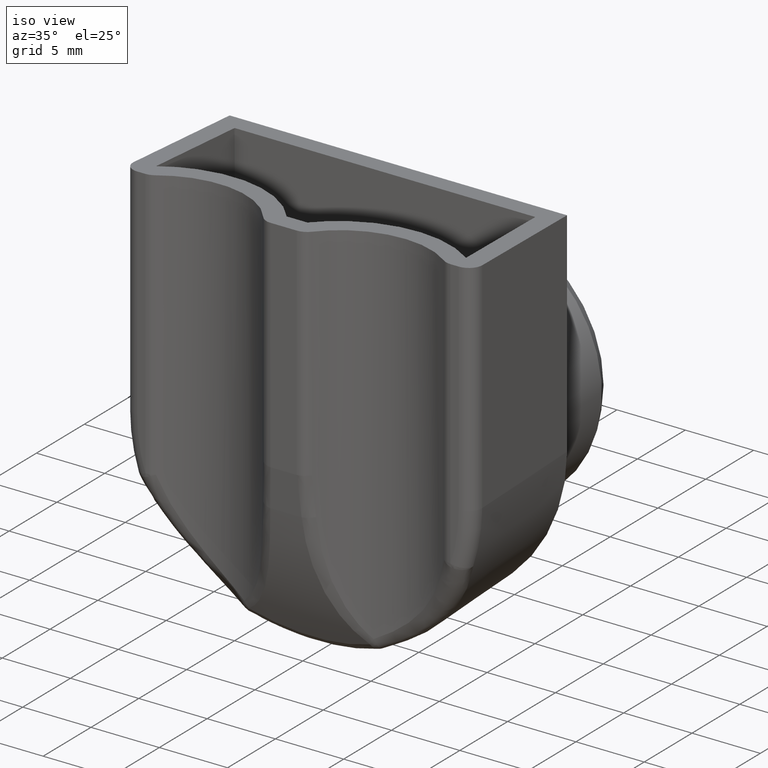
[diagram: clean part render]
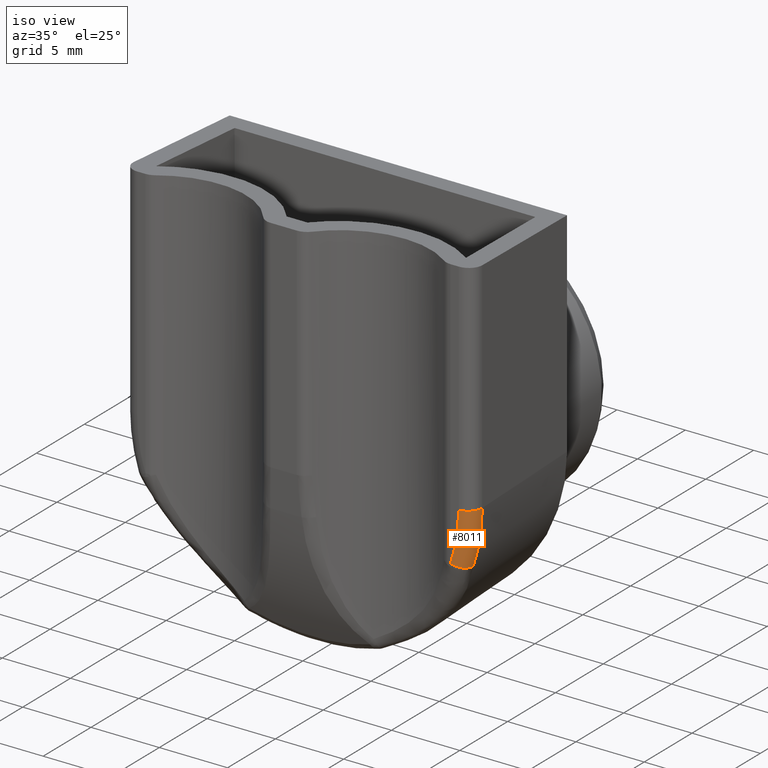
[diagram: same view with one face highlighted and labeled with its STEP entity id]
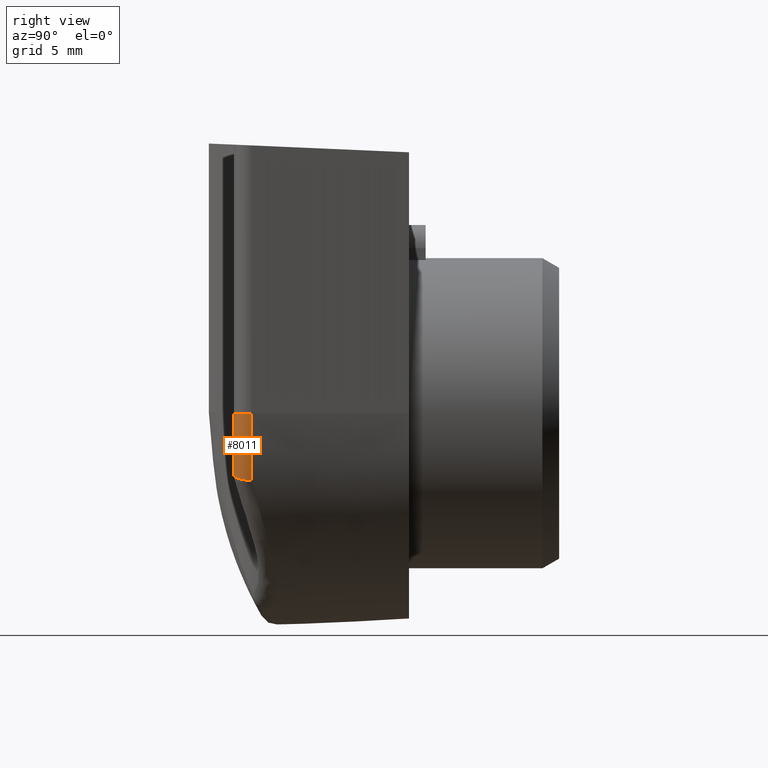
[diagram: same view with one face highlighted and labeled with its STEP entity id]
A machine part, iso view. The second image highlights one B-rep face of the part: STEP entity #8011.
A second angle (right view) of the same face is appended — the face is thin or edge-on in the first view.
In plain terms, the highlighted toroidal blend (fillet) surface has major radius 11.7638 mm and minor (blend) radius 1 mm.
Its self-contained STEP definition (entity closure, byte-faithful):
#214 = CARTESIAN_POINT ( 'NONE',  ( 12.76287449404941700, -9.456380612634680100, 0.0000000000000000000 ) ) ;
#444 = DIRECTION ( 'NONE',  ( -1.043609643147647100E-014, 4.423875622942882200E-016, 1.000000000000000000 ) ) ;
#445 = DIRECTION ( 'NONE',  ( -5.622133538114148000E-016, -1.000000000000000000, -4.544217445503873200E-016 ) ) ;
#446 = CARTESIAN_POINT ( 'NONE',  ( -1.040834085586084300E-014, -10.50000000000000900, -6.938893903907228400E-015 ) ) ;
#447 = AXIS2_PLACEMENT_3D ( 'NONE', #446, #445, #444 ) ;
#448 = CIRCLE ( 'NONE', #447, 11.76382627246754700 ) ;
#1380 = CIRCLE ( 'NONE', #1458, 1.000000000000000700 ) ;
#1455 = DIRECTION ( 'NONE',  ( -0.9491172545370706300, 0.0000000000000000000, 0.3149229066613187200 ) ) ;
#1456 = DIRECTION ( 'NONE',  ( -0.3149229066613196100, 5.835287073897454000E-015, -0.9491172545370703000 ) ) ;
#1457 = CARTESIAN_POINT ( 'NONE',  ( 11.16525049457547200, -9.500000000000008900, -3.704698363184273800 ) ) ;
#1458 = AXIS2_PLACEMENT_3D ( 'NONE', #1457, #1456, #1455 ) ;
#2594 = ORIENTED_EDGE ( 'NONE', *, *, #6319, .F. ) ;
#2595 = ORIENTED_EDGE ( 'NONE', *, *, #6218, .F. ) ;
#2596 = ORIENTED_EDGE ( 'NONE', *, *, #6117, .F. ) ;
#2597 = EDGE_CURVE ( 'NONE', #6185, #6317, #1380, .T. ) ;
#2598 = ORIENTED_EDGE ( 'NONE', *, *, #2597, .F. ) ;
#2601 = ORIENTED_EDGE ( 'NONE', *, *, #7843, .T. ) ;
#2790 = CARTESIAN_POINT ( 'NONE',  ( 11.76382627246756300, -10.49999999999998200, 0.0000000000000000000 ) ) ;
#2886 = CARTESIAN_POINT ( 'NONE',  ( 12.11346439979336900, -9.456380612634651700, -4.019321533019655700 ) ) ;
#2916 = CARTESIAN_POINT ( 'NONE',  ( 11.16525049457545500, -10.49999999999998200, -3.704698363184287600 ) ) ;
#2922 = DIRECTION ( 'NONE',  ( 3.330669073875470000E-015, -4.077584897004845200E-016, -1.000000000000000000 ) ) ;
#2923 = DIRECTION ( 'NONE',  ( 5.622133538114148000E-016, 1.000000000000000000, 4.544217445503873200E-016 ) ) ;
#2924 = CARTESIAN_POINT ( 'NONE',  ( -1.040834085586084300E-014, -9.456380612634680100, -6.938893903907228400E-015 ) ) ;
#2925 = AXIS2_PLACEMENT_3D ( 'NONE', #2924, #2923, #2922 ) ;
#2926 = CIRCLE ( 'NONE', #2925, 12.76287449404940600 ) ;
#3205 = DIRECTION ( 'NONE',  ( -0.3149229066613196100, 5.835287073897454000E-015, -0.9491172545370703000 ) ) ;
#3206 = CARTESIAN_POINT ( 'NONE',  ( 11.16525049457547200, -9.500000000000008900, -3.704698363184273800 ) ) ;
#3207 = AXIS2_PLACEMENT_3D ( 'NONE', #3206, #3205, #3227 ) ;
#3208 = CIRCLE ( 'NONE', #3207, 1.000000000000000700 ) ;
#3227 = DIRECTION ( 'NONE',  ( -0.9491172545370706300, 0.0000000000000000000, 0.3149229066613187200 ) ) ;
#3274 = CARTESIAN_POINT ( 'NONE',  ( 12.11436774911254400, -9.500000000000008900, -4.019621269845592900 ) ) ;
#5353 = CIRCLE ( 'NONE', #5373, 1.000000000000000900 ) ;
#5370 = DIRECTION ( 'NONE',  ( -1.000000000000000000, 0.0000000000000000000, -2.220446049250311100E-016 ) ) ;
#5371 = DIRECTION ( 'NONE',  ( -2.220446049250313100E-016, -4.544217445503875200E-016, -1.000000000000000000 ) ) ;
#5372 = CARTESIAN_POINT ( 'NONE',  ( 11.76382627246755800, -9.499999999999980500, 0.0000000000000000000 ) ) ;
#5373 = AXIS2_PLACEMENT_3D ( 'NONE', #5372, #5371, #5370 ) ;
#5727 = DIRECTION ( 'NONE',  ( 2.220446049250308200E-016, -4.544217445503873200E-016, 1.000000000000000000 ) ) ;
#5728 = DIRECTION ( 'NONE',  ( 5.622133538114148000E-016, 1.000000000000000000, 4.544217445503873200E-016 ) ) ;
#5729 = CARTESIAN_POINT ( 'NONE',  ( -1.040834085586084300E-014, -9.500000000000008900, -6.938893903907228400E-015 ) ) ;
#5730 = AXIS2_PLACEMENT_3D ( 'NONE', #5729, #5728, #5727 ) ;
#5731 = TOROIDAL_SURFACE ( 'NONE', #5730, 11.76382627246754700, 1.000000000000000000 ) ;
#5744 = FACE_OUTER_BOUND ( 'NONE', #8006, .T. ) ;
#5991 = VERTEX_POINT ( 'NONE', #214 ) ;
#6117 = EDGE_CURVE ( 'NONE', #6223, #6155, #448, .T. ) ;
#6155 = VERTEX_POINT ( 'NONE', #2790 ) ;
#6185 = VERTEX_POINT ( 'NONE', #2886 ) ;
#6218 = EDGE_CURVE ( 'NONE', #5991, #6185, #2926, .T. ) ;
#6223 = VERTEX_POINT ( 'NONE', #2916 ) ;
#6317 = VERTEX_POINT ( 'NONE', #3274 ) ;
#6319 = EDGE_CURVE ( 'NONE', #6317, #6223, #3208, .T. ) ;
#7843 = EDGE_CURVE ( 'NONE', #5991, #6155, #5353, .T. ) ;
#8006 = EDGE_LOOP ( 'NONE', ( #2601, #2596, #2594, #2598, #2595 ) ) ;
#8011 = ADVANCED_FACE ( 'NONE', ( #5744 ), #5731, .T. ) ;